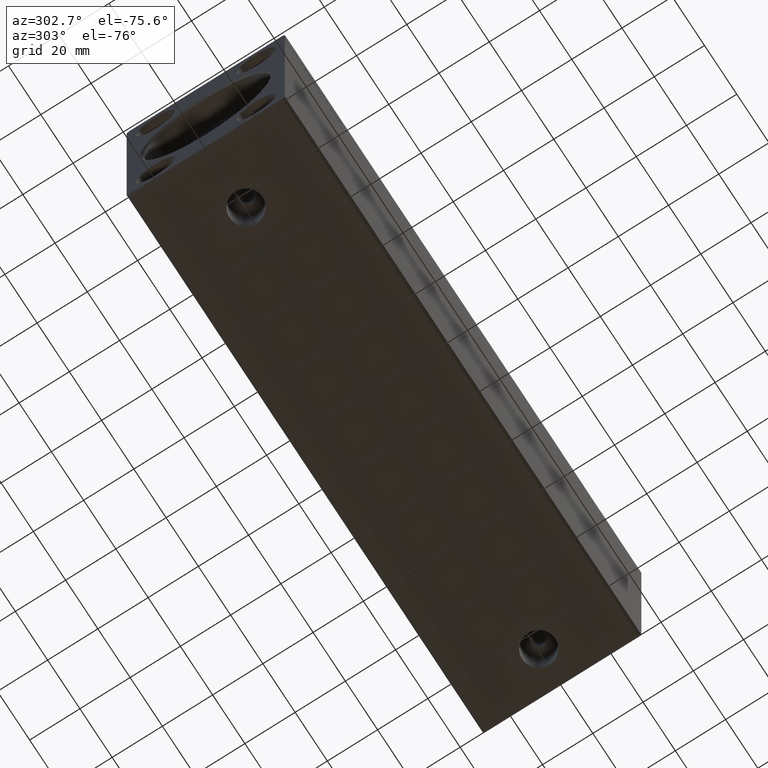
[diagram: clean part render]
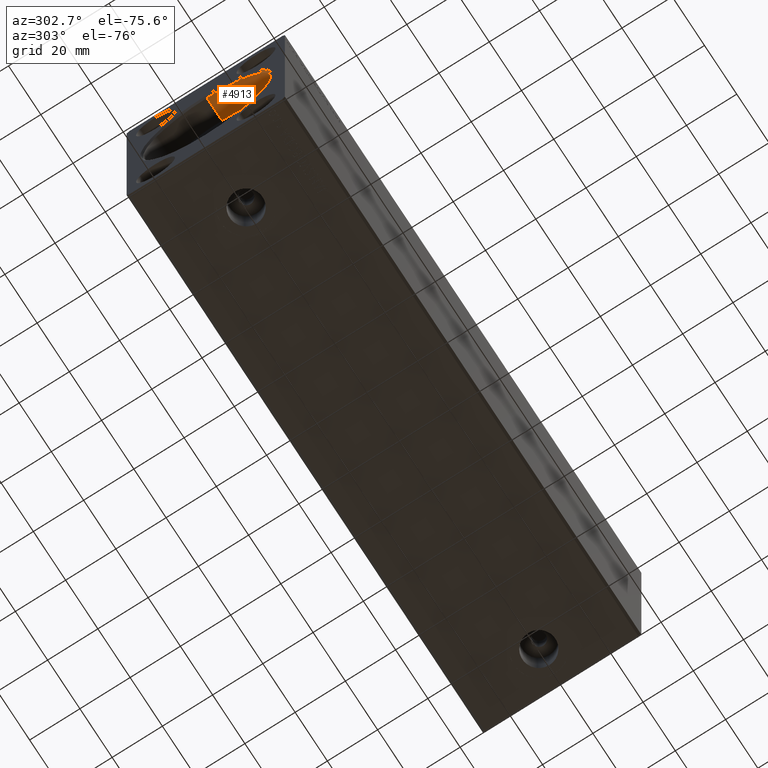
[diagram: same view with one face highlighted and labeled with its STEP entity id]
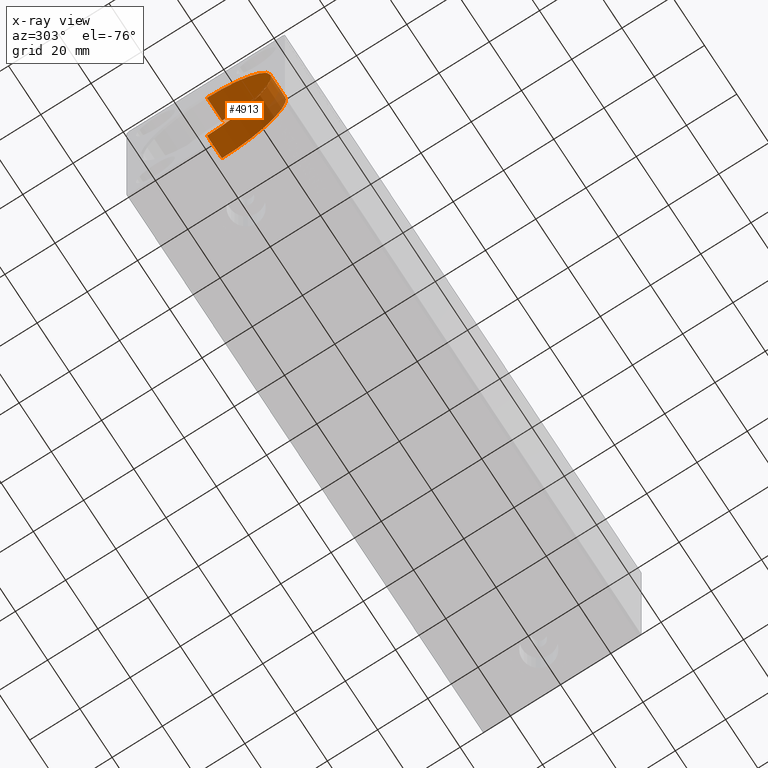
[diagram: x-ray of the same camera — body ghosted, the highlighted face saturated]
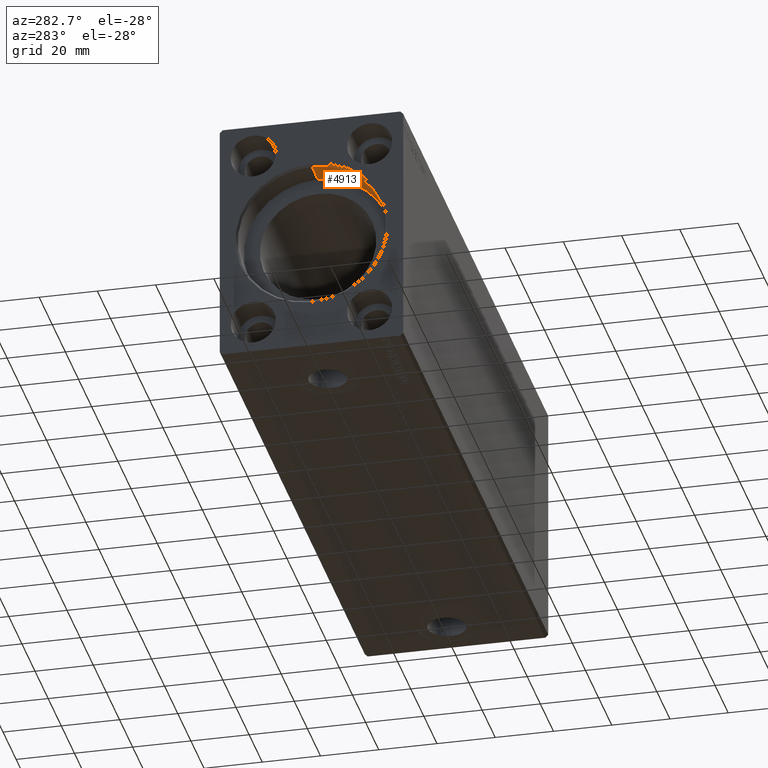
[diagram: same view with one face highlighted and labeled with its STEP entity id]
A machine part, auxiliary view. The second image highlights one B-rep face of the part: STEP entity #4913.
The next image is the same camera in x-ray: the body ghosted, the highlighted face saturated — about 8% of this face is hidden behind the body in this view.
A second angle (auxiliary view) of the same face is appended — the face is thin or edge-on in the first view.
In plain terms, the highlighted cylindrical surface (partial cylindrical patch) has radius 25.5 mm, axis along (-1, -0, -0).
Its self-contained STEP definition (entity closure, byte-faithful):
#1126 = EDGE_CURVE ( 'NONE', #1311, #21437, #27878, .T. ) ;
#1188 = CIRCLE ( 'NONE', #17661, 25.50000000000000000 ) ;
#1311 = VERTEX_POINT ( 'NONE', #4434 ) ;
#3596 = DIRECTION ( 'NONE',  ( -1.000000000000000000, -0.000000000000000000, -0.000000000000000000 ) ) ;
#4358 = DIRECTION ( 'NONE',  ( 0.000000000000000000, 0.000000000000000000, -1.000000000000000000 ) ) ;
#4434 = CARTESIAN_POINT ( 'NONE',  ( 10.00000000000000000, 0.000000000000000000, 25.50000000000000000 ) ) ;
#4913 = ADVANCED_FACE ( 'NONE', ( #27806 ), #27181, .F. ) ;
#6373 = VECTOR ( 'NONE', #40770, 1000.000000000000000 ) ;
#10575 = ORIENTED_EDGE ( 'NONE', *, *, #40151, .T. ) ;
#11788 = CARTESIAN_POINT ( 'NONE',  ( 10.00000000000000000, 0.000000000000000000, 25.50000000000000000 ) ) ;
#13523 = CIRCLE ( 'NONE', #37515, 25.50000000000000000 ) ;
#14182 = CARTESIAN_POINT ( 'NONE',  ( 10.00000000000000000, 0.000000000000000000, 0.000000000000000000 ) ) ;
#14496 = EDGE_CURVE ( 'NONE', #24399, #1311, #13523, .T. ) ;
#15166 = VECTOR ( 'NONE', #3596, 1000.000000000000000 ) ;
#16937 = ORIENTED_EDGE ( 'NONE', *, *, #25223, .T. ) ;
#17661 = AXIS2_PLACEMENT_3D ( 'NONE', #38245, #17683, #4358 ) ;
#17683 = DIRECTION ( 'NONE',  ( -1.000000000000000000, 0.000000000000000000, 0.000000000000000000 ) ) ;
#21375 = DIRECTION ( 'NONE',  ( -1.000000000000000000, -0.000000000000000000, -0.000000000000000000 ) ) ;
#21437 = VERTEX_POINT ( 'NONE', #38549 ) ;
#22137 = CARTESIAN_POINT ( 'NONE',  ( 0.6999999999999506617, 3.122849337825750222E-15, -25.50000000000000000 ) ) ;
#24399 = VERTEX_POINT ( 'NONE', #38010 ) ;
#25223 = EDGE_CURVE ( 'NONE', #32163, #21437, #1188, .T. ) ;
#27181 = CYLINDRICAL_SURFACE ( 'NONE', #31162, 25.50000000000000000 ) ;
#27806 = FACE_OUTER_BOUND ( 'NONE', #38556, .T. ) ;
#27878 = LINE ( 'NONE', #11788, #6373 ) ;
#28721 = ORIENTED_EDGE ( 'NONE', *, *, #14496, .F. ) ;
#30405 = DIRECTION ( 'NONE',  ( 0.000000000000000000, 0.000000000000000000, 1.000000000000000000 ) ) ;
#31162 = AXIS2_PLACEMENT_3D ( 'NONE', #40912, #21375, #30405 ) ;
#32163 = VERTEX_POINT ( 'NONE', #22137 ) ;
#33018 = LINE ( 'NONE', #42263, #15166 ) ;
#33720 = DIRECTION ( 'NONE',  ( -1.000000000000000000, 0.000000000000000000, 0.000000000000000000 ) ) ;
#34486 = ORIENTED_EDGE ( 'NONE', *, *, #1126, .F. ) ;
#37515 = AXIS2_PLACEMENT_3D ( 'NONE', #14182, #33720, #40160 ) ;
#38010 = CARTESIAN_POINT ( 'NONE',  ( 10.00000000000000000, 3.122849337825750222E-15, -25.50000000000000000 ) ) ;
#38245 = CARTESIAN_POINT ( 'NONE',  ( 0.6999999999999506617, 0.000000000000000000, 0.000000000000000000 ) ) ;
#38549 = CARTESIAN_POINT ( 'NONE',  ( 0.6999999999999506617, 0.000000000000000000, 25.50000000000000000 ) ) ;
#38556 = EDGE_LOOP ( 'NONE', ( #28721, #10575, #16937, #34486 ) ) ;
#40151 = EDGE_CURVE ( 'NONE', #24399, #32163, #33018, .T. ) ;
#40160 = DIRECTION ( 'NONE',  ( 0.000000000000000000, 0.000000000000000000, 1.000000000000000000 ) ) ;
#40770 = DIRECTION ( 'NONE',  ( -1.000000000000000000, -0.000000000000000000, -0.000000000000000000 ) ) ;
#40912 = CARTESIAN_POINT ( 'NONE',  ( 10.00000000000000000, 0.000000000000000000, 0.000000000000000000 ) ) ;
#42263 = CARTESIAN_POINT ( 'NONE',  ( 10.00000000000000000, 3.122849337825750222E-15, -25.50000000000000000 ) ) ;